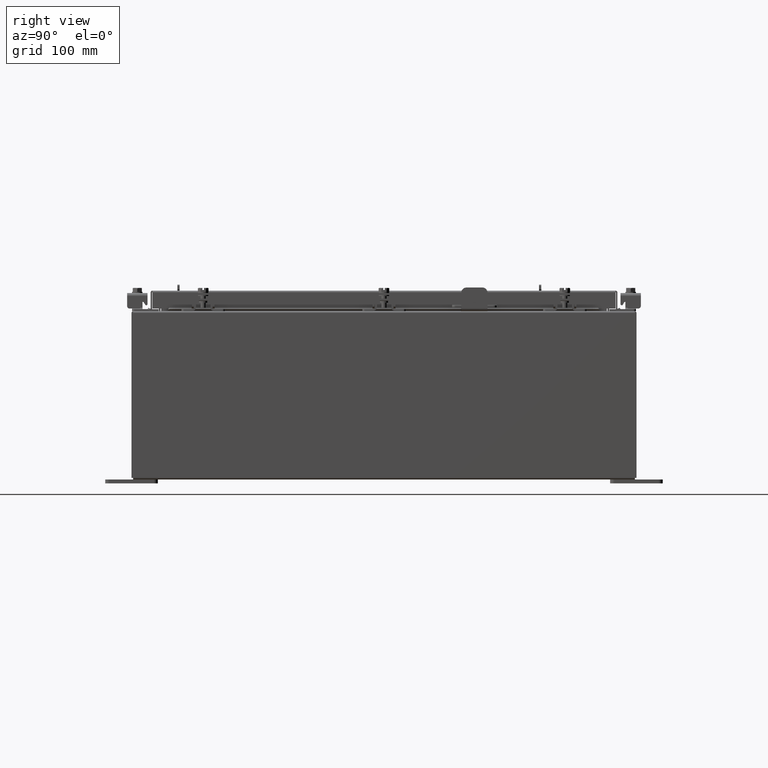
[diagram: clean part render]
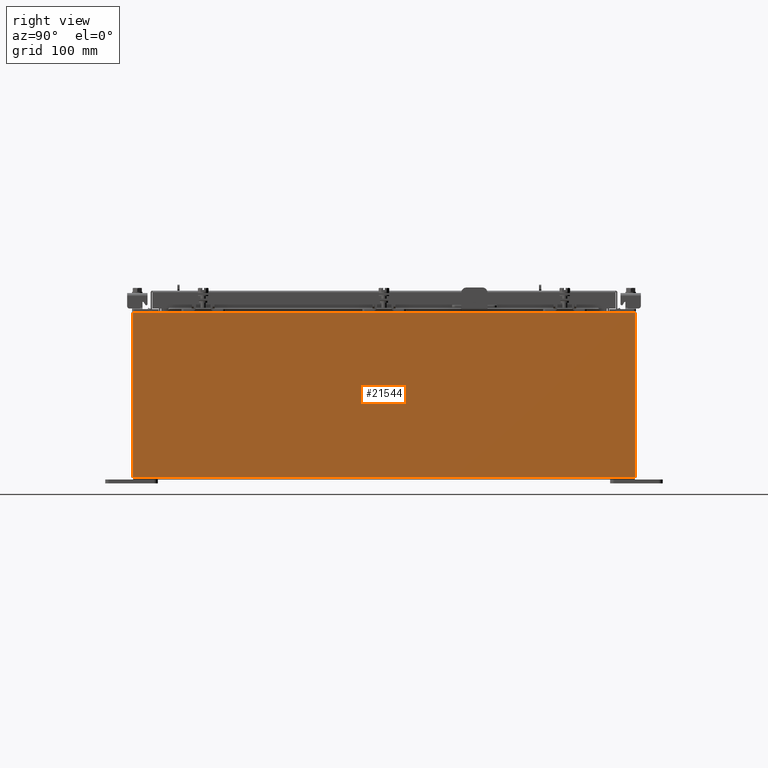
[diagram: same view with one face highlighted and labeled with its STEP entity id]
A machine part, right view. The second image highlights one B-rep face of the part: STEP entity #21544.
In plain terms, the highlighted planar face has unit normal (-1, 0, 0).
Its self-contained STEP definition (entity closure, byte-faithful):
#1488 = VECTOR ( 'NONE', #20399, 39.37007874015748100 ) ;
#1840 = EDGE_CURVE ( 'NONE', #4342, #14587, #6307, .T. ) ;
#2177 = LINE ( 'NONE', #11802, #10819 ) ;
#2232 = VECTOR ( 'NONE', #7691, 39.37007874015748100 ) ;
#3356 = EDGE_CURVE ( 'NONE', #18413, #4342, #2177, .T. ) ;
#4342 = VERTEX_POINT ( 'NONE', #20403 ) ;
#4609 = EDGE_CURVE ( 'NONE', #16296, #14587, #5986, .T. ) ;
#5312 = CARTESIAN_POINT ( 'NONE',  ( 10.00000000000000000, -11.92530000000000000, 0.01299999999999983600 ) ) ;
#5432 = PLANE ( 'NONE',  #10459 ) ;
#5986 = LINE ( 'NONE', #11483, #19287 ) ;
#6165 = ORIENTED_EDGE ( 'NONE', *, *, #1840, .T. ) ;
#6219 = DIRECTION ( 'NONE',  ( -0.0000000000000000000, -1.000000000000000000, -0.0000000000000000000 ) ) ;
#6307 = LINE ( 'NONE', #14521, #2232 ) ;
#7141 = CARTESIAN_POINT ( 'NONE',  ( 10.00000000000000000, 0.0000000000000000000, -3.610957538630361200E-014 ) ) ;
#7691 = DIRECTION ( 'NONE',  ( -3.584876173029202900E-015, 0.0000000000000000000, -1.000000000000000000 ) ) ;
#7974 = EDGE_CURVE ( 'NONE', #16296, #18413, #14788, .T. ) ;
#8233 = CARTESIAN_POINT ( 'NONE',  ( 10.00000000000000000, 11.92530000000000000, -3.610957538630361200E-014 ) ) ;
#8875 = DIRECTION ( 'NONE',  ( -1.000000000000000000, 0.0000000000000000000, 3.584876173029202900E-015 ) ) ;
#9188 = CARTESIAN_POINT ( 'NONE',  ( 10.00000000000000000, 11.92529999999999800, 0.01299999999999984700 ) ) ;
#9462 = FACE_OUTER_BOUND ( 'NONE', #20030, .T. ) ;
#10459 = AXIS2_PLACEMENT_3D ( 'NONE', #7141, #8875, #21043 ) ;
#10819 = VECTOR ( 'NONE', #6219, 39.37007874015748100 ) ;
#11483 = CARTESIAN_POINT ( 'NONE',  ( 10.00000000000000000, -11.92530000000000000, 0.01299999999999984700 ) ) ;
#11802 = CARTESIAN_POINT ( 'NONE',  ( 10.00000000000002800, 11.92530000000000000, 7.837599999999992100 ) ) ;
#12959 = DIRECTION ( 'NONE',  ( -0.0000000000000000000, -1.000000000000000000, -0.0000000000000000000 ) ) ;
#13510 = ORIENTED_EDGE ( 'NONE', *, *, #4609, .F. ) ;
#14038 = ORIENTED_EDGE ( 'NONE', *, *, #3356, .T. ) ;
#14401 = ORIENTED_EDGE ( 'NONE', *, *, #7974, .T. ) ;
#14521 = CARTESIAN_POINT ( 'NONE',  ( 10.00000000000000000, -11.92530000000000000, -3.610957538630361200E-014 ) ) ;
#14587 = VERTEX_POINT ( 'NONE', #5312 ) ;
#14788 = LINE ( 'NONE', #8233, #1488 ) ;
#16296 = VERTEX_POINT ( 'NONE', #9188 ) ;
#18413 = VERTEX_POINT ( 'NONE', #21237 ) ;
#19287 = VECTOR ( 'NONE', #12959, 39.37007874015748100 ) ;
#20030 = EDGE_LOOP ( 'NONE', ( #14038, #6165, #13510, #14401 ) ) ;
#20399 = DIRECTION ( 'NONE',  ( 3.584876173029202900E-015, 0.0000000000000000000, 1.000000000000000000 ) ) ;
#20403 = CARTESIAN_POINT ( 'NONE',  ( 10.00000000000002800, -11.92530000000000000, 7.837599999999998300 ) ) ;
#21043 = DIRECTION ( 'NONE',  ( 3.584876173029202900E-015, 0.0000000000000000000, 1.000000000000000000 ) ) ;
#21237 = CARTESIAN_POINT ( 'NONE',  ( 10.00000000000002800, 11.92529999999999800, 7.837599999999992100 ) ) ;
#21544 = ADVANCED_FACE ( 'NONE', ( #9462 ), #5432, .F. ) ;